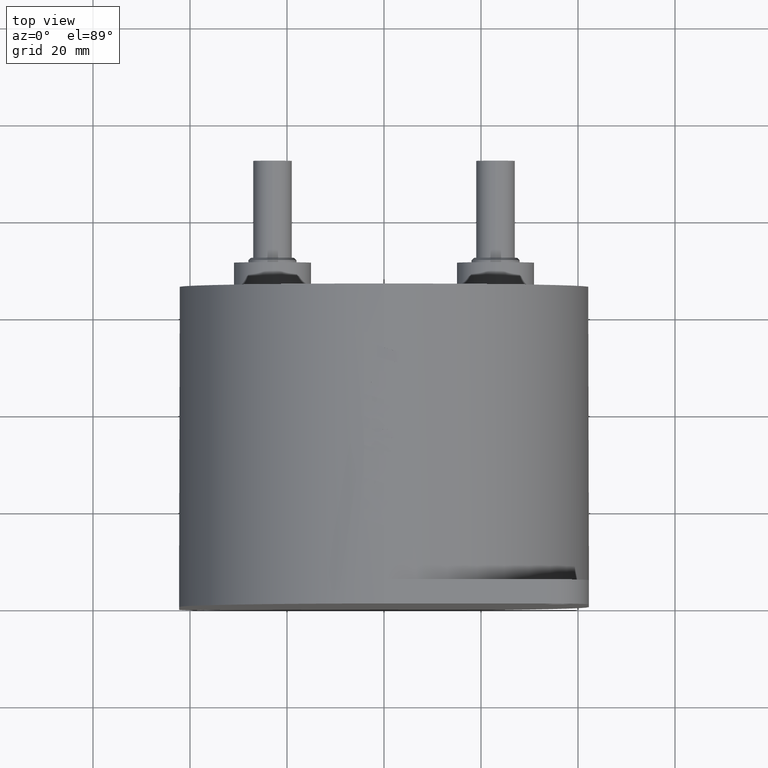
[diagram: clean part render]
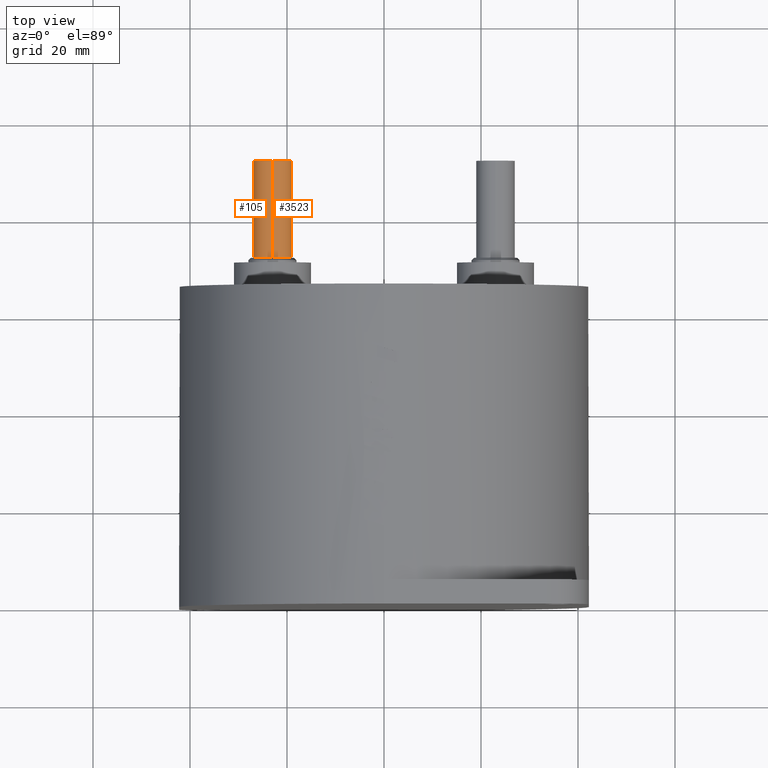
[diagram: same view with one multi-face feature highlighted, each face labeled with its STEP entity id]
A machine part, top view. The highlighted faces form ONE feature: a constant-radius fillet chain: 2 tangent blend faces with common blend radius 4 mm. The faces share edges in the B-rep.
Their STEP definitions:
[1] entity #3523 (Cylinder):
#34 = AXIS2_PLACEMENT_3D ( 'NONE', #2030, #121, #2382 ) ;
#121 = DIRECTION ( 'NONE',  ( 0.0000000000000000000, 1.000000000000000000, 0.0000000000000000000 ) ) ;
#209 = EDGE_CURVE ( 'NONE', #2016, #1020, #2234, .T. ) ;
#275 = ORIENTED_EDGE ( 'NONE', *, *, #3757, .T. ) ;
#384 = VERTEX_POINT ( 'NONE', #3931 ) ;
#491 = ORIENTED_EDGE ( 'NONE', *, *, #209, .F. ) ;
#496 = EDGE_CURVE ( 'NONE', #1020, #384, #2850, .T. ) ;
#550 = VECTOR ( 'NONE', #2946, 1000.000000000000000 ) ;
#563 = CARTESIAN_POINT ( 'NONE',  ( -23.00000000000000000, 92.00000000000001400, 3.999999999999999100 ) ) ;
#809 = EDGE_CURVE ( 'NONE', #2016, #2878, #3959, .T. ) ;
#875 = CARTESIAN_POINT ( 'NONE',  ( -23.00000000000000000, 92.00000000000001400, -3.999999999999999100 ) ) ;
#1020 = VERTEX_POINT ( 'NONE', #3123 ) ;
#1310 = CARTESIAN_POINT ( 'NONE',  ( -23.00000000000000000, 92.00000000000001400, 0.0000000000000000000 ) ) ;
#1578 = CARTESIAN_POINT ( 'NONE',  ( -23.00000000000000000, 92.00000000000001400, 0.0000000000000000000 ) ) ;
#1702 = CARTESIAN_POINT ( 'NONE',  ( -23.00000000000000000, 92.00000000000001400, 3.999999999999999100 ) ) ;
#1889 = VECTOR ( 'NONE', #3424, 1000.000000000000000 ) ;
#1976 = DIRECTION ( 'NONE',  ( 0.0000000000000000000, 1.000000000000000000, 0.0000000000000000000 ) ) ;
#1994 = DIRECTION ( 'NONE',  ( 0.0000000000000000000, 0.0000000000000000000, 1.000000000000000000 ) ) ;
#2016 = VERTEX_POINT ( 'NONE', #563 ) ;
#2030 = CARTESIAN_POINT ( 'NONE',  ( -23.00000000000000000, 72.00000000000001400, 0.0000000000000000000 ) ) ;
#2234 = CIRCLE ( 'NONE', #3587, 3.999999999999999100 ) ;
#2382 = DIRECTION ( 'NONE',  ( 0.0000000000000000000, 0.0000000000000000000, 1.000000000000000000 ) ) ;
#2520 = CYLINDRICAL_SURFACE ( 'NONE', #3924, 3.999999999999999100 ) ;
#2772 = FACE_OUTER_BOUND ( 'NONE', #3603, .T. ) ;
#2850 = LINE ( 'NONE', #875, #1889 ) ;
#2878 = VERTEX_POINT ( 'NONE', #3556 ) ;
#2946 = DIRECTION ( 'NONE',  ( -0.0000000000000000000, -1.000000000000000000, -0.0000000000000000000 ) ) ;
#2974 = ORIENTED_EDGE ( 'NONE', *, *, #496, .F. ) ;
#3123 = CARTESIAN_POINT ( 'NONE',  ( -23.00000000000000000, 92.00000000000001400, -3.999999999999999100 ) ) ;
#3424 = DIRECTION ( 'NONE',  ( -0.0000000000000000000, -1.000000000000000000, -0.0000000000000000000 ) ) ;
#3476 = ORIENTED_EDGE ( 'NONE', *, *, #809, .T. ) ;
#3523 = ADVANCED_FACE ( 'NONE', ( #2772 ), #2520, .T. ) ;
#3556 = CARTESIAN_POINT ( 'NONE',  ( -23.00000000000000000, 72.00000000000001400, 3.999999999999999100 ) ) ;
#3587 = AXIS2_PLACEMENT_3D ( 'NONE', #1310, #1976, #1994 ) ;
#3603 = EDGE_LOOP ( 'NONE', ( #491, #3476, #275, #2974 ) ) ;
#3740 = CIRCLE ( 'NONE', #34, 3.999999999999999100 ) ;
#3757 = EDGE_CURVE ( 'NONE', #2878, #384, #3740, .T. ) ;
#3924 = AXIS2_PLACEMENT_3D ( 'NONE', #1578, #4132, #4071 ) ;
#3931 = CARTESIAN_POINT ( 'NONE',  ( -23.00000000000000000, 72.00000000000001400, -3.999999999999999100 ) ) ;
#3959 = LINE ( 'NONE', #1702, #550 ) ;
#4071 = DIRECTION ( 'NONE',  ( 0.0000000000000000000, 0.0000000000000000000, -1.000000000000000000 ) ) ;
#4132 = DIRECTION ( 'NONE',  ( -0.0000000000000000000, -1.000000000000000000, -0.0000000000000000000 ) ) ;
[2] entity #105 (Cylinder):
#39 = DIRECTION ( 'NONE',  ( 0.0000000000000000000, 1.000000000000000000, 0.0000000000000000000 ) ) ;
#105 = ADVANCED_FACE ( 'NONE', ( #363 ), #4091, .T. ) ;
#363 = FACE_OUTER_BOUND ( 'NONE', #1171, .T. ) ;
#384 = VERTEX_POINT ( 'NONE', #3931 ) ;
#496 = EDGE_CURVE ( 'NONE', #1020, #384, #2850, .T. ) ;
#550 = VECTOR ( 'NONE', #2946, 1000.000000000000000 ) ;
#563 = CARTESIAN_POINT ( 'NONE',  ( -23.00000000000000000, 92.00000000000001400, 3.999999999999999100 ) ) ;
#620 = ORIENTED_EDGE ( 'NONE', *, *, #496, .T. ) ;
#636 = DIRECTION ( 'NONE',  ( 0.0000000000000000000, 0.0000000000000000000, 1.000000000000000000 ) ) ;
#768 = CARTESIAN_POINT ( 'NONE',  ( -23.00000000000000000, 92.00000000000001400, 0.0000000000000000000 ) ) ;
#809 = EDGE_CURVE ( 'NONE', #2016, #2878, #3959, .T. ) ;
#842 = ORIENTED_EDGE ( 'NONE', *, *, #3849, .T. ) ;
#875 = CARTESIAN_POINT ( 'NONE',  ( -23.00000000000000000, 92.00000000000001400, -3.999999999999999100 ) ) ;
#969 = DIRECTION ( 'NONE',  ( 0.0000000000000000000, 0.0000000000000000000, 1.000000000000000000 ) ) ;
#1020 = VERTEX_POINT ( 'NONE', #3123 ) ;
#1171 = EDGE_LOOP ( 'NONE', ( #2920, #3611, #620, #842 ) ) ;
#1277 = CARTESIAN_POINT ( 'NONE',  ( -23.00000000000000000, 72.00000000000001400, 0.0000000000000000000 ) ) ;
#1425 = AXIS2_PLACEMENT_3D ( 'NONE', #3801, #4134, #636 ) ;
#1702 = CARTESIAN_POINT ( 'NONE',  ( -23.00000000000000000, 92.00000000000001400, 3.999999999999999100 ) ) ;
#1889 = VECTOR ( 'NONE', #3424, 1000.000000000000000 ) ;
#2016 = VERTEX_POINT ( 'NONE', #563 ) ;
#2117 = EDGE_CURVE ( 'NONE', #1020, #2016, #4043, .T. ) ;
#2157 = DIRECTION ( 'NONE',  ( 0.0000000000000000000, 0.0000000000000000000, -1.000000000000000000 ) ) ;
#2850 = LINE ( 'NONE', #875, #1889 ) ;
#2878 = VERTEX_POINT ( 'NONE', #3556 ) ;
#2920 = ORIENTED_EDGE ( 'NONE', *, *, #809, .F. ) ;
#2946 = DIRECTION ( 'NONE',  ( -0.0000000000000000000, -1.000000000000000000, -0.0000000000000000000 ) ) ;
#3053 = AXIS2_PLACEMENT_3D ( 'NONE', #768, #3632, #2157 ) ;
#3067 = AXIS2_PLACEMENT_3D ( 'NONE', #1277, #39, #969 ) ;
#3123 = CARTESIAN_POINT ( 'NONE',  ( -23.00000000000000000, 92.00000000000001400, -3.999999999999999100 ) ) ;
#3424 = DIRECTION ( 'NONE',  ( -0.0000000000000000000, -1.000000000000000000, -0.0000000000000000000 ) ) ;
#3448 = CIRCLE ( 'NONE', #3067, 3.999999999999999100 ) ;
#3556 = CARTESIAN_POINT ( 'NONE',  ( -23.00000000000000000, 72.00000000000001400, 3.999999999999999100 ) ) ;
#3611 = ORIENTED_EDGE ( 'NONE', *, *, #2117, .F. ) ;
#3632 = DIRECTION ( 'NONE',  ( -0.0000000000000000000, -1.000000000000000000, -0.0000000000000000000 ) ) ;
#3801 = CARTESIAN_POINT ( 'NONE',  ( -23.00000000000000000, 92.00000000000001400, 0.0000000000000000000 ) ) ;
#3849 = EDGE_CURVE ( 'NONE', #384, #2878, #3448, .T. ) ;
#3931 = CARTESIAN_POINT ( 'NONE',  ( -23.00000000000000000, 72.00000000000001400, -3.999999999999999100 ) ) ;
#3959 = LINE ( 'NONE', #1702, #550 ) ;
#4043 = CIRCLE ( 'NONE', #1425, 3.999999999999999100 ) ;
#4091 = CYLINDRICAL_SURFACE ( 'NONE', #3053, 3.999999999999999100 ) ;
#4134 = DIRECTION ( 'NONE',  ( 0.0000000000000000000, 1.000000000000000000, 0.0000000000000000000 ) ) ;